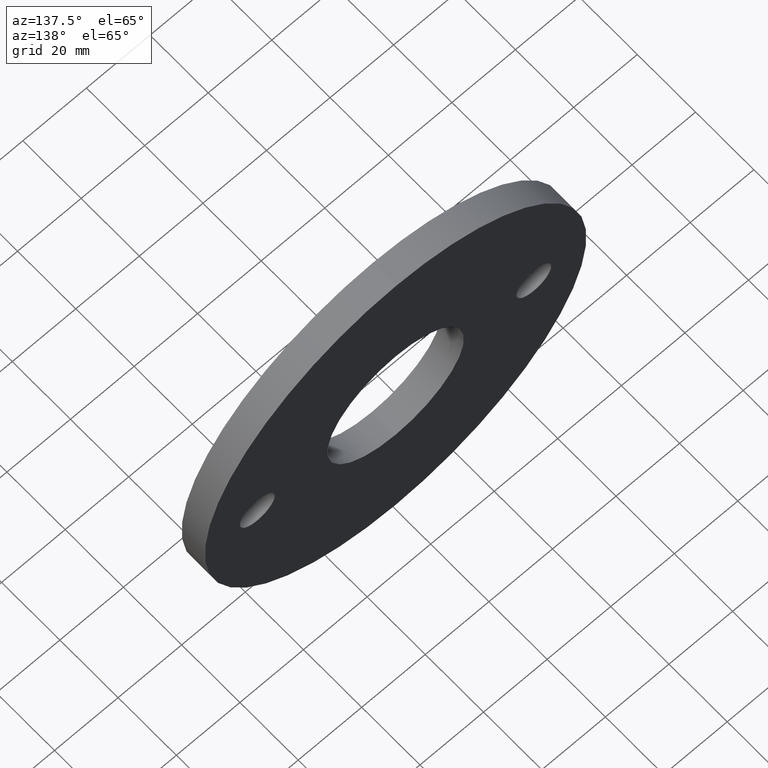
[diagram: clean part render]
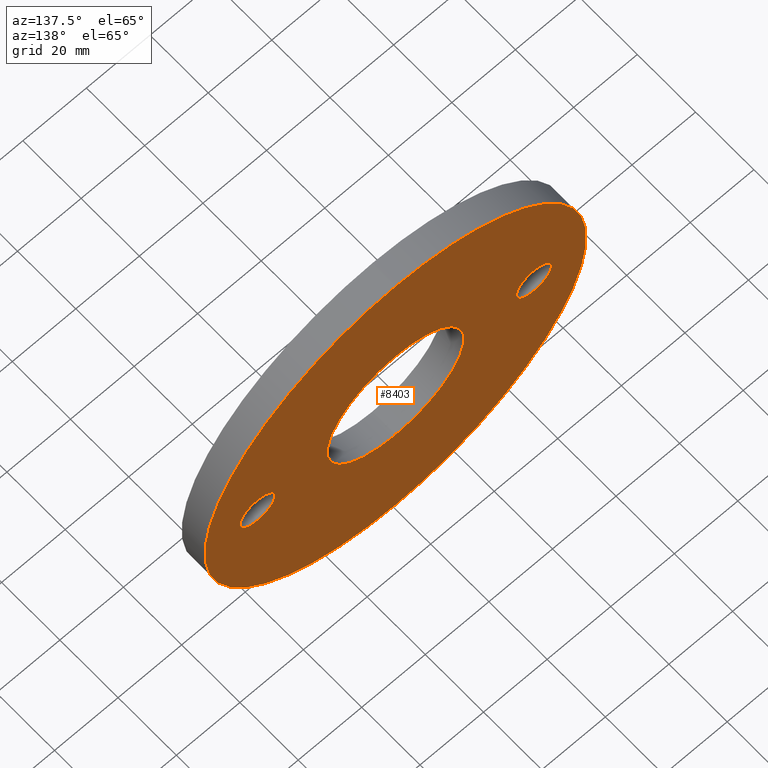
[diagram: same view with one face highlighted and labeled with its STEP entity id]
A machine part, auxiliary view. The second image highlights one B-rep face of the part: STEP entity #8403.
In plain terms, the highlighted planar face has unit normal (0, 1, 0).
Its self-contained STEP definition (entity closure, byte-faithful):
#36 = AXIS2_PLACEMENT_3D ( 'NONE', #2269, #8871, #5107 ) ;
#52 = DIRECTION ( 'NONE',  ( 0.0000000000000000000, -0.0000000000000000000, 1.000000000000000000 ) ) ;
#69 = CIRCLE ( 'NONE', #2396, 5.499999999999996400 ) ;
#222 = CIRCLE ( 'NONE', #2756, 5.499999999999996400 ) ;
#395 = CIRCLE ( 'NONE', #2625, 5.499999999999996400 ) ;
#598 = AXIS2_PLACEMENT_3D ( 'NONE', #2796, #11227, #5538 ) ;
#822 = ORIENTED_EDGE ( 'NONE', *, *, #4763, .F. ) ;
#1409 = DIRECTION ( 'NONE',  ( 0.0000000000000000000, 1.000000000000000000, 0.0000000000000000000 ) ) ;
#1718 = EDGE_LOOP ( 'NONE', ( #1862, #8461 ) ) ;
#1745 = CIRCLE ( 'NONE', #6396, 21.50000000000000000 ) ;
#1803 = VERTEX_POINT ( 'NONE', #7318 ) ;
#1862 = ORIENTED_EDGE ( 'NONE', *, *, #7718, .F. ) ;
#1926 = ORIENTED_EDGE ( 'NONE', *, *, #7243, .F. ) ;
#1958 = PLANE ( 'NONE',  #3057 ) ;
#2074 = DIRECTION ( 'NONE',  ( 0.0000000000000000000, 1.000000000000000000, 0.0000000000000000000 ) ) ;
#2213 = CARTESIAN_POINT ( 'NONE',  ( 0.0000000000000000000, 8.000000000000000000, 0.0000000000000000000 ) ) ;
#2218 = EDGE_CURVE ( 'NONE', #2555, #4477, #395, .T. ) ;
#2269 = CARTESIAN_POINT ( 'NONE',  ( 0.0000000000000000000, 8.000000000000000000, 0.0000000000000000000 ) ) ;
#2318 = EDGE_CURVE ( 'NONE', #12179, #10492, #5799, .T. ) ;
#2396 = AXIS2_PLACEMENT_3D ( 'NONE', #9425, #8375, #9457 ) ;
#2542 = FACE_OUTER_BOUND ( 'NONE', #4432, .T. ) ;
#2555 = VERTEX_POINT ( 'NONE', #8252 ) ;
#2625 = AXIS2_PLACEMENT_3D ( 'NONE', #8810, #3149, #9874 ) ;
#2756 = AXIS2_PLACEMENT_3D ( 'NONE', #5470, #2780, #4571 ) ;
#2769 = CIRCLE ( 'NONE', #36, 60.00000000000000000 ) ;
#2780 = DIRECTION ( 'NONE',  ( 0.0000000000000000000, 1.000000000000000000, 0.0000000000000000000 ) ) ;
#2796 = CARTESIAN_POINT ( 'NONE',  ( 0.0000000000000000000, 8.000000000000000000, 0.0000000000000000000 ) ) ;
#2869 = CARTESIAN_POINT ( 'NONE',  ( 2.632990618166809200E-015, 8.000000000000000000, -21.50000000000000000 ) ) ;
#2986 = ORIENTED_EDGE ( 'NONE', *, *, #3683, .F. ) ;
#3057 = AXIS2_PLACEMENT_3D ( 'NONE', #9504, #11479, #52 ) ;
#3149 = DIRECTION ( 'NONE',  ( 0.0000000000000000000, 1.000000000000000000, 0.0000000000000000000 ) ) ;
#3166 = EDGE_LOOP ( 'NONE', ( #2986, #822 ) ) ;
#3251 = AXIS2_PLACEMENT_3D ( 'NONE', #7639, #2074, #8676 ) ;
#3267 = ORIENTED_EDGE ( 'NONE', *, *, #2318, .T. ) ;
#3683 = EDGE_CURVE ( 'NONE', #9614, #10538, #1745, .T. ) ;
#3685 = CARTESIAN_POINT ( 'NONE',  ( -43.50000000000000000, 8.000000000000000000, -5.499999999999996400 ) ) ;
#3767 = CARTESIAN_POINT ( 'NONE',  ( 0.0000000000000000000, 8.000000000000000000, 21.50000000000000000 ) ) ;
#4432 = EDGE_LOOP ( 'NONE', ( #3267, #8484 ) ) ;
#4477 = VERTEX_POINT ( 'NONE', #6598 ) ;
#4571 = DIRECTION ( 'NONE',  ( 0.0000000000000000000, 0.0000000000000000000, 1.000000000000000000 ) ) ;
#4580 = EDGE_CURVE ( 'NONE', #10492, #12179, #2769, .T. ) ;
#4730 = FACE_BOUND ( 'NONE', #3166, .T. ) ;
#4763 = EDGE_CURVE ( 'NONE', #10538, #9614, #9256, .T. ) ;
#5107 = DIRECTION ( 'NONE',  ( 0.0000000000000000000, 0.0000000000000000000, 1.000000000000000000 ) ) ;
#5409 = CARTESIAN_POINT ( 'NONE',  ( 7.347880794884118400E-015, 8.000000000000000000, 60.00000000000000000 ) ) ;
#5470 = CARTESIAN_POINT ( 'NONE',  ( -43.50000000000000000, 8.000000000000000000, 0.0000000000000000000 ) ) ;
#5538 = DIRECTION ( 'NONE',  ( 0.0000000000000000000, 0.0000000000000000000, 1.000000000000000000 ) ) ;
#5547 = AXIS2_PLACEMENT_3D ( 'NONE', #11822, #8008, #10777 ) ;
#5799 = CIRCLE ( 'NONE', #3251, 60.00000000000000000 ) ;
#5899 = ORIENTED_EDGE ( 'NONE', *, *, #2218, .F. ) ;
#5937 = EDGE_LOOP ( 'NONE', ( #1926, #5899 ) ) ;
#6396 = AXIS2_PLACEMENT_3D ( 'NONE', #2213, #1409, #9857 ) ;
#6598 = CARTESIAN_POINT ( 'NONE',  ( 43.50000000000000000, 8.000000000000000000, 5.499999999999985800 ) ) ;
#7243 = EDGE_CURVE ( 'NONE', #4477, #2555, #8758, .T. ) ;
#7318 = CARTESIAN_POINT ( 'NONE',  ( -43.50000000000000000, 8.000000000000000000, 5.499999999999996400 ) ) ;
#7547 = FACE_BOUND ( 'NONE', #1718, .T. ) ;
#7639 = CARTESIAN_POINT ( 'NONE',  ( 0.0000000000000000000, 8.000000000000000000, 0.0000000000000000000 ) ) ;
#7718 = EDGE_CURVE ( 'NONE', #1803, #9590, #69, .T. ) ;
#8008 = DIRECTION ( 'NONE',  ( 0.0000000000000000000, 1.000000000000000000, 0.0000000000000000000 ) ) ;
#8252 = CARTESIAN_POINT ( 'NONE',  ( 43.50000000000000000, 8.000000000000000000, -5.500000000000006200 ) ) ;
#8375 = DIRECTION ( 'NONE',  ( 0.0000000000000000000, 1.000000000000000000, 0.0000000000000000000 ) ) ;
#8403 = ADVANCED_FACE ( 'NONE', ( #4730, #11134, #7547, #2542 ), #1958, .T. ) ;
#8461 = ORIENTED_EDGE ( 'NONE', *, *, #11728, .F. ) ;
#8484 = ORIENTED_EDGE ( 'NONE', *, *, #4580, .T. ) ;
#8655 = CARTESIAN_POINT ( 'NONE',  ( 0.0000000000000000000, 8.000000000000000000, -60.00000000000000000 ) ) ;
#8676 = DIRECTION ( 'NONE',  ( 0.0000000000000000000, 0.0000000000000000000, 1.000000000000000000 ) ) ;
#8758 = CIRCLE ( 'NONE', #5547, 5.499999999999996400 ) ;
#8810 = CARTESIAN_POINT ( 'NONE',  ( 43.50000000000000000, 8.000000000000000000, -1.065442715258197200E-014 ) ) ;
#8871 = DIRECTION ( 'NONE',  ( 0.0000000000000000000, 1.000000000000000000, 0.0000000000000000000 ) ) ;
#9256 = CIRCLE ( 'NONE', #598, 21.50000000000000000 ) ;
#9425 = CARTESIAN_POINT ( 'NONE',  ( -43.50000000000000000, 8.000000000000000000, 0.0000000000000000000 ) ) ;
#9457 = DIRECTION ( 'NONE',  ( 0.0000000000000000000, 0.0000000000000000000, 1.000000000000000000 ) ) ;
#9504 = CARTESIAN_POINT ( 'NONE',  ( 0.0000000000000000000, 8.000000000000000000, 0.0000000000000000000 ) ) ;
#9590 = VERTEX_POINT ( 'NONE', #3685 ) ;
#9614 = VERTEX_POINT ( 'NONE', #3767 ) ;
#9857 = DIRECTION ( 'NONE',  ( 0.0000000000000000000, 0.0000000000000000000, 1.000000000000000000 ) ) ;
#9874 = DIRECTION ( 'NONE',  ( 0.0000000000000000000, 0.0000000000000000000, 1.000000000000000000 ) ) ;
#10492 = VERTEX_POINT ( 'NONE', #5409 ) ;
#10538 = VERTEX_POINT ( 'NONE', #2869 ) ;
#10777 = DIRECTION ( 'NONE',  ( 0.0000000000000000000, 0.0000000000000000000, 1.000000000000000000 ) ) ;
#11134 = FACE_BOUND ( 'NONE', #5937, .T. ) ;
#11227 = DIRECTION ( 'NONE',  ( 0.0000000000000000000, 1.000000000000000000, 0.0000000000000000000 ) ) ;
#11479 = DIRECTION ( 'NONE',  ( 0.0000000000000000000, 1.000000000000000000, 0.0000000000000000000 ) ) ;
#11728 = EDGE_CURVE ( 'NONE', #9590, #1803, #222, .T. ) ;
#11822 = CARTESIAN_POINT ( 'NONE',  ( 43.50000000000000000, 8.000000000000000000, -1.065442715258197200E-014 ) ) ;
#12179 = VERTEX_POINT ( 'NONE', #8655 ) ;